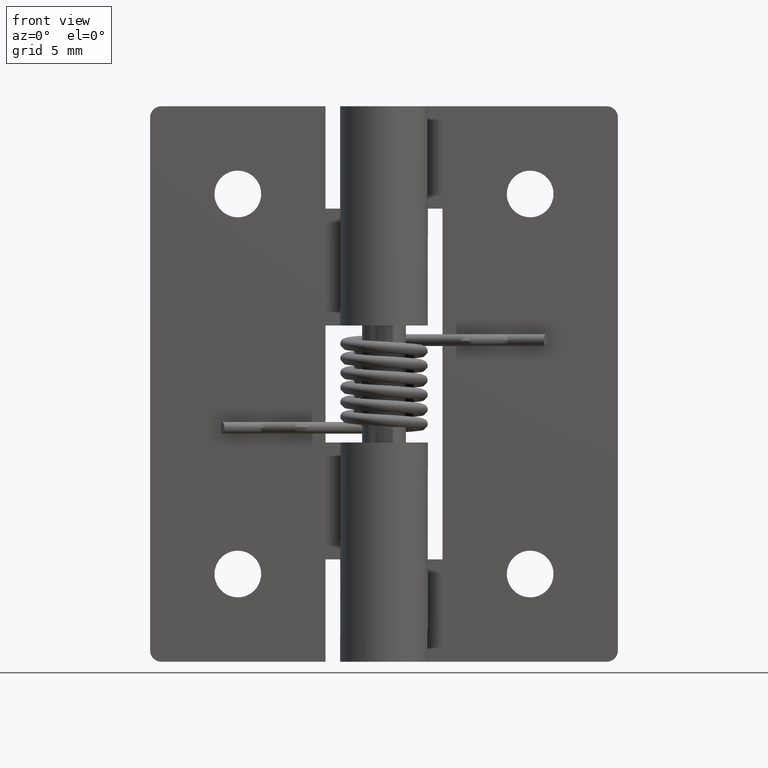
[diagram: clean part render]
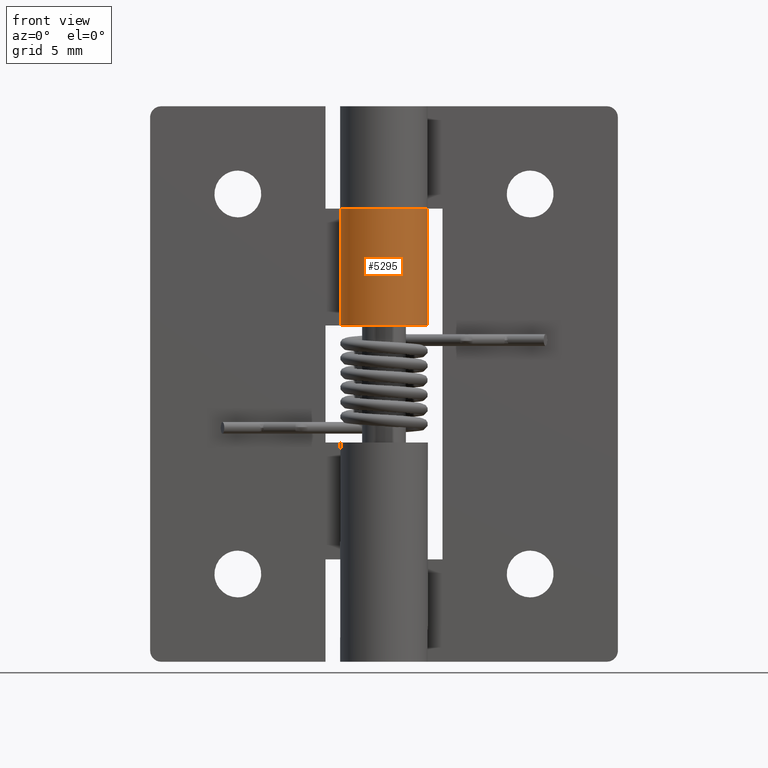
[diagram: same view with one face highlighted and labeled with its STEP entity id]
A machine part, front view. The second image highlights one B-rep face of the part: STEP entity #5295.
In plain terms, the highlighted face is a freeform B-spline surface patch.
Its self-contained STEP definition (entity closure, byte-faithful):
#4653=CARTESIAN_POINT('',(0.0,3.0,23.0));
#4654=VERTEX_POINT('',#4653);
#4660=CARTESIAN_POINT('',(-2.626309197333780,1.450000000000000,23.0));
#4661=VERTEX_POINT('',#4660);
#4662=CARTESIAN_POINT('',(0.0,3.0,23.0));
#4663=CARTESIAN_POINT('',(2.290598042424809,3.000000000000000,23.0));
#4664=CARTESIAN_POINT('',(2.894028888043301,0.790314364775724,23.0));
#4665=CARTESIAN_POINT('',(3.497459733661795,-1.419371270448553,23.0));
#4666=CARTESIAN_POINT('',(1.524795068197690,-2.583602136552763,23.0));
#4667=CARTESIAN_POINT('',(-0.447869597266411,-3.747833002656972,23.0));
#4668=CARTESIAN_POINT('',(-2.090650590886090,-2.151552952364325,23.0));
#4669=CARTESIAN_POINT('',(-3.733431584505770,-0.555272902071677,23.0));
#4670=CARTESIAN_POINT('',(-2.626309197333780,1.449999999999999,23.0));
#4678=(BOUNDED_CURVE()B_SPLINE_CURVE(2,(#4662,#4663,#4664,#4665,#4666,#4667,#4668,#4669,#4670),.UNSPECIFIED.,.F.,.U.)B_SPLINE_CURVE_WITH_KNOTS((3,2,2,2,3),(0.0,0.250000000000000,0.500000000000000,0.750000000000000,1.0),.UNSPECIFIED.)CURVE()GEOMETRIC_REPRESENTATION_ITEM()RATIONAL_B_SPLINE_CURVE((1.0,0.794807562115481,1.0,0.794807562115481,1.0,0.794807562115481,1.0,0.794807562115481,1.0))REPRESENTATION_ITEM(''));
#4679=EDGE_CURVE('',#4654,#4661,#4678,.T.);
#4771=CARTESIAN_POINT('',(-2.626309197333780,1.450000000000000,31.0));
#4772=VERTEX_POINT('',#4771);
#4773=CARTESIAN_POINT('',(0.0,3.0,31.0));
#4774=VERTEX_POINT('',#4773);
#4775=CARTESIAN_POINT('',(-2.626309197333780,1.450000000000000,31.0));
#4776=CARTESIAN_POINT('',(-3.733431584505770,-0.555272902071676,31.0));
#4777=CARTESIAN_POINT('',(-2.090650590886091,-2.151552952364325,31.0));
#4778=CARTESIAN_POINT('',(-0.447869597266413,-3.747833002656972,31.0));
#4779=CARTESIAN_POINT('',(1.524795068197689,-2.583602136552763,31.0));
#4780=CARTESIAN_POINT('',(3.497459733661793,-1.419371270448554,31.0));
#4781=CARTESIAN_POINT('',(2.894028888043301,0.790314364775723,31.0));
#4782=CARTESIAN_POINT('',(2.290598042424808,3.0,31.0));
#4783=CARTESIAN_POINT('',(0.0,3.0,31.0));
#4791=(BOUNDED_CURVE()B_SPLINE_CURVE(2,(#4775,#4776,#4777,#4778,#4779,#4780,#4781,#4782,#4783),.UNSPECIFIED.,.F.,.U.)B_SPLINE_CURVE_WITH_KNOTS((3,2,2,2,3),(0.0,0.250000000000000,0.500000000000000,0.750000000000000,1.0),.UNSPECIFIED.)CURVE()GEOMETRIC_REPRESENTATION_ITEM()RATIONAL_B_SPLINE_CURVE((1.0,0.794807562115481,1.0,0.794807562115481,1.0,0.794807562115481,1.0,0.794807562115481,1.0))REPRESENTATION_ITEM(''));
#4792=EDGE_CURVE('',#4772,#4774,#4791,.T.);
#5220=CARTESIAN_POINT('',(-2.626309197333780,1.450000000000000,23.0));
#5221=CARTESIAN_POINT('',(-2.626309197333780,1.450000000000000,31.0));
#5222=QUASI_UNIFORM_CURVE('',1,(#5220,#5221),.UNSPECIFIED.,.F.,.U.);
#5223=EDGE_CURVE('',#4661,#4772,#5222,.T.);
#5263=CARTESIAN_POINT('',(-0.026179606495119,2.999885769192513,22.800000000000001));
#5264=CARTESIAN_POINT('',(-0.026179606495119,2.999885769192513,31.205000000000009));
#5265=CARTESIAN_POINT('',(3.591480617393748,3.031456611678275,22.800000000000004));
#5266=CARTESIAN_POINT('',(3.591480617393748,3.031456611678275,31.205000000000005));
#5267=CARTESIAN_POINT('',(2.952895395395788,-0.529536385766218,22.800000000000001));
#5268=CARTESIAN_POINT('',(2.952895395395788,-0.529536385766218,31.205000000000009));
#5269=CARTESIAN_POINT('',(2.314310173397830,-4.090529383210711,22.800000000000004));
#5270=CARTESIAN_POINT('',(2.314310173397830,-4.090529383210711,31.205000000000005));
#5271=CARTESIAN_POINT('',(-1.066952285444628,-2.803856776046965,22.800000000000001));
#5272=CARTESIAN_POINT('',(-1.066952285444628,-2.803856776046965,31.205000000000009));
#5273=CARTESIAN_POINT('',(-4.448214744287087,-1.517184168883220,22.800000000000004));
#5274=CARTESIAN_POINT('',(-4.448214744287087,-1.517184168883220,31.205000000000005));
#5275=CARTESIAN_POINT('',(-2.557920493062278,1.567495694147844,22.800000000000001));
#5276=CARTESIAN_POINT('',(-2.557920493062278,1.567495694147844,31.205000000000009));
#5284=(BOUNDED_SURFACE()B_SPLINE_SURFACE(1,2,((#5263,#5265,#5267,#5269,#5271,#5273,#5275),(#5264,#5266,#5268,#5270,#5272,#5274,#5276)),.UNSPECIFIED.,.F.,.F.,.U.)B_SPLINE_SURFACE_WITH_KNOTS((2,2),(3,2,2,3),(0.0,8.405000000000012),(0.0,5.638246512160404,11.276493024320811,16.914739536481211),.UNSPECIFIED.)GEOMETRIC_REPRESENTATION_ITEM()RATIONAL_B_SPLINE_SURFACE(((1.0,0.638320090924328,1.0,0.638320090924328,1.0,0.638320090924328,1.0),(1.0,0.638320090924328,1.0,0.638320090924328,1.0,0.638320090924328,1.0)))REPRESENTATION_ITEM('')SURFACE());
#5285=ORIENTED_EDGE('',*,*,#4679,.F.);
#5286=CARTESIAN_POINT('',(0.0,3.0,23.0));
#5287=CARTESIAN_POINT('',(0.0,3.0,31.0));
#5288=QUASI_UNIFORM_CURVE('',1,(#5286,#5287),.UNSPECIFIED.,.F.,.U.);
#5289=EDGE_CURVE('',#4654,#4774,#5288,.T.);
#5290=ORIENTED_EDGE('',*,*,#5289,.T.);
#5291=ORIENTED_EDGE('',*,*,#4792,.F.);
#5292=ORIENTED_EDGE('',*,*,#5223,.F.);
#5293=EDGE_LOOP('',(#5285,#5290,#5291,#5292));
#5294=FACE_OUTER_BOUND('',#5293,.T.);
#5295=ADVANCED_FACE('',(#5294),#5284,.T.);